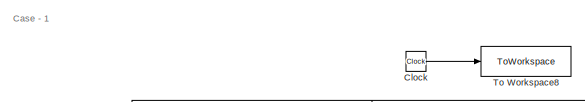
[diagram: root canvas - part 1/5, top left region]
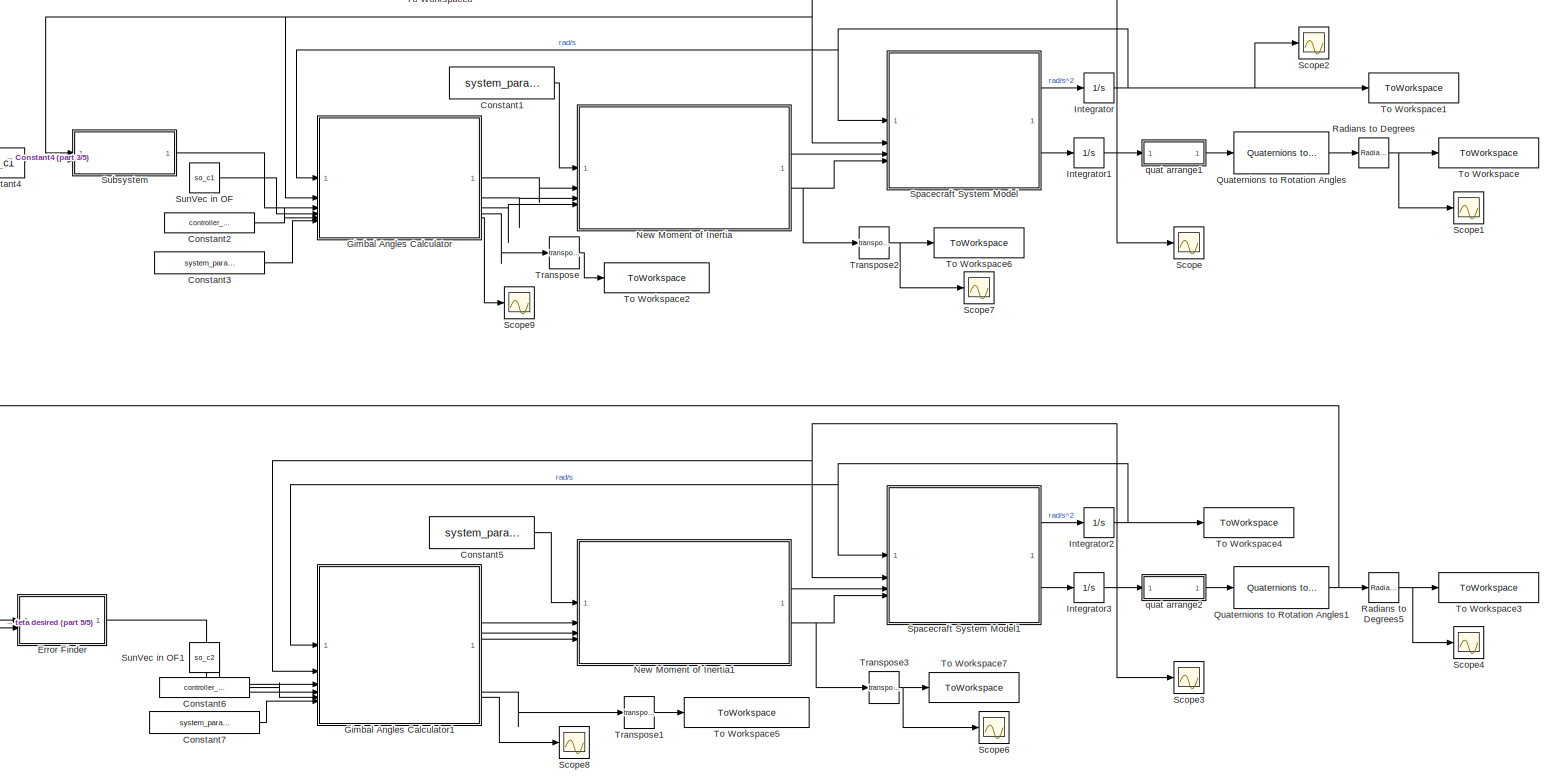
[diagram: root canvas - part 2/5, most of the canvas]
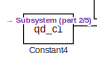
[diagram: root canvas - part 3/5, top left region]
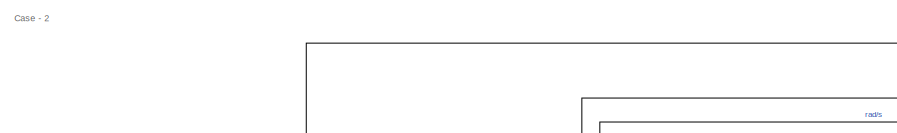
[diagram: root canvas - part 4/5, middle left region]
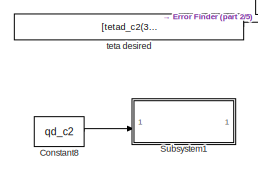
[diagram: root canvas - part 5/5, bottom left region]
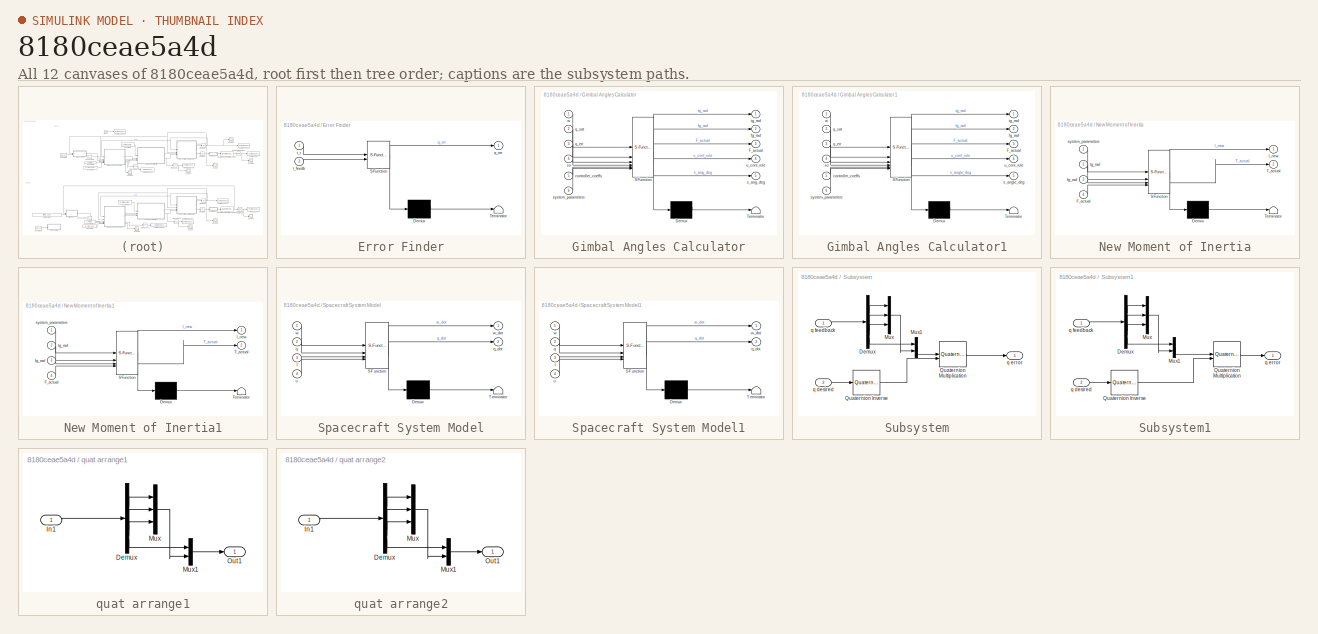
[diagram: thumbnail index - all 12 canvases of the model, root first then tree order]
MODEL slx_8180ceae5a4d
KIND model
CONFIG AbsTol = auto
CONFIG EnableMultiTasking = off
CONFIG FixedStep = dt
CONFIG MaxStep = auto
CONFIG MinStep = auto
CONFIG RelTol = 1e-3
CONFIG SampleTimeConstraint = Unconstrained
CONFIG SolverName = ode4
CONFIG StartTime = 0.0
CONFIG StopTime = tf_sim
BLOCK [Clock] Clock
BLOCK [Constant] Constant1
  Value = system_parameters
BLOCK [Constant] Constant2
  Value = controller_coeffs
BLOCK [Constant] Constant3
  Value = system_parameters
BLOCK [Constant] Constant4
  Value = qd_c1
BLOCK [Constant] Constant5
  Value = system_parameters
BLOCK [Constant] Constant6
  Value = controller_coeffs
BLOCK [Constant] Constant7
  Value = system_parameters
BLOCK [Constant] Constant8
  Commented = on
  Value = qd_c2
BLOCK [SubSystem] Error Finder
  ErrorFcn = Stateflow.Translate.translate
  PermitHierarchicalResolution = ExplicitOnly
  SFBlockType = MATLAB Function
  TreatAsAtomicUnit = on
BLOCK [Demux] Error Finder/ Demux 
  Outputs = 1
BLOCK [S-Function] Error Finder/ SFunction 
  EnableBusSupport = on
  FunctionName = sf_sfun
  PortCounts = [2 2]
  SFcnIsStateOwnerBlock = off
  SFunctionDeploymentMode = off
  Tag = Stateflow S-Function 6
BLOCK [Terminator] Error Finder/ Terminator 
BLOCK [Outport] Error Finder/q_err
BLOCK [Inport] Error Finder/t_feedb
  Port = 2
BLOCK [Inport] Error Finder/t_r
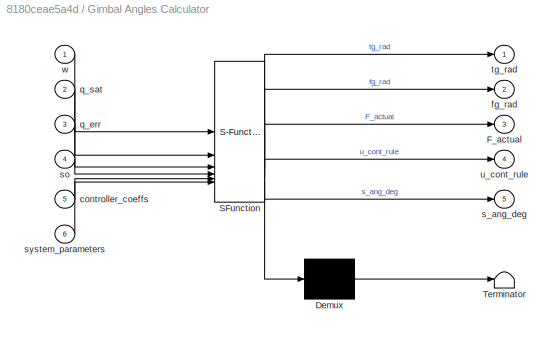
BLOCK [SubSystem] Gimbal Angles Calculator
  ErrorFcn = Stateflow.Translate.translate
  PermitHierarchicalResolution = ExplicitOnly
  SFBlockType = MATLAB Function
  TreatAsAtomicUnit = on
BLOCK [Demux] Gimbal Angles Calculator/ Demux 
  Outputs = 1
BLOCK [S-Function] Gimbal Angles Calculator/ SFunction 
  EnableBusSupport = on
  FunctionName = sf_sfun
  PortCounts = [6 6]
  SFcnIsStateOwnerBlock = off
  SFunctionDeploymentMode = off
  Tag = Stateflow S-Function 3
BLOCK [Terminator] Gimbal Angles Calculator/ Terminator 
BLOCK [Outport] Gimbal Angles Calculator/F_actual
  Port = 3
BLOCK [Inport] Gimbal Angles Calculator/controller_coeffs
  Port = 5
BLOCK [Outport] Gimbal Angles Calculator/fg_rad
  Port = 2
BLOCK [Inport] Gimbal Angles Calculator/q_err
  Port = 3
BLOCK [Inport] Gimbal Angles Calculator/q_sat
  Port = 2
BLOCK [Outport] Gimbal Angles Calculator/s_ang_deg
  Port = 5
BLOCK [Inport] Gimbal Angles Calculator/so
  Port = 4
BLOCK [Inport] Gimbal Angles Calculator/system_parameters
  Port = 6
BLOCK [Outport] Gimbal Angles Calculator/tg_rad
BLOCK [Outport] Gimbal Angles Calculator/u_cont_rule
  Port = 4
BLOCK [Inport] Gimbal Angles Calculator/w
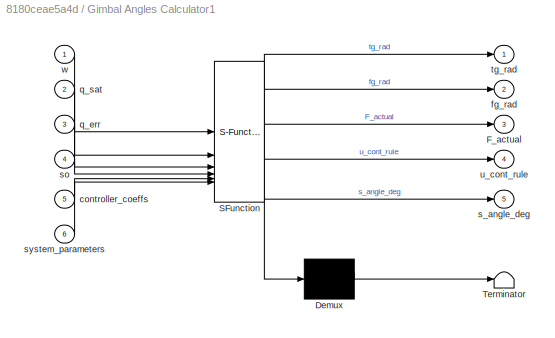
BLOCK [SubSystem] Gimbal Angles Calculator1
  ErrorFcn = Stateflow.Translate.translate
  PermitHierarchicalResolution = ExplicitOnly
  SFBlockType = MATLAB Function
  TreatAsAtomicUnit = on
BLOCK [Demux] Gimbal Angles Calculator1/ Demux 
  Outputs = 1
BLOCK [S-Function] Gimbal Angles Calculator1/ SFunction 
  EnableBusSupport = on
  FunctionName = sf_sfun
  PortCounts = [6 6]
  SFcnIsStateOwnerBlock = off
  SFunctionDeploymentMode = off
  Tag = Stateflow S-Function 1
BLOCK [Terminator] Gimbal Angles Calculator1/ Terminator 
BLOCK [Outport] Gimbal Angles Calculator1/F_actual
  Port = 3
BLOCK [Inport] Gimbal Angles Calculator1/controller_coeffs
  Port = 5
BLOCK [Outport] Gimbal Angles Calculator1/fg_rad
  Port = 2
BLOCK [Inport] Gimbal Angles Calculator1/q_err
  Port = 3
BLOCK [Inport] Gimbal Angles Calculator1/q_sat
  Port = 2
BLOCK [Outport] Gimbal Angles Calculator1/s_angle_deg
  Port = 5
BLOCK [Inport] Gimbal Angles Calculator1/so
  Port = 4
BLOCK [Inport] Gimbal Angles Calculator1/system_parameters
  Port = 6
BLOCK [Outport] Gimbal Angles Calculator1/tg_rad
BLOCK [Outport] Gimbal Angles Calculator1/u_cont_rule
  Port = 4
BLOCK [Inport] Gimbal Angles Calculator1/w
BLOCK [Integrator] Integrator
  InitialCondition = w0_c1
BLOCK [Integrator] Integrator1
  InitialCondition = [q0_c1(2:4)';q0_c1(1)]
BLOCK [Integrator] Integrator2
  InitialCondition = w0_c2
BLOCK [Integrator] Integrator3
  InitialCondition = [q0_c2(2:4)';q0_c2(1)]
BLOCK [SubSystem] New Moment of Inertia
  ErrorFcn = Stateflow.Translate.translate
  PermitHierarchicalResolution = ExplicitOnly
  SFBlockType = MATLAB Function
  TreatAsAtomicUnit = on
BLOCK [Demux] New Moment of Inertia/ Demux 
  Outputs = 1
BLOCK [S-Function] New Moment of Inertia/ SFunction 
  EnableBusSupport = on
  FunctionName = sf_sfun
  PortCounts = [4 3]
  SFcnIsStateOwnerBlock = off
  SFunctionDeploymentMode = off
  Tag = Stateflow S-Function 2
BLOCK [Terminator] New Moment of Inertia/ Terminator 
BLOCK [Inport] New Moment of Inertia/F_actual
  Port = 4
BLOCK [Outport] New Moment of Inertia/I_new
BLOCK [Outport] New Moment of Inertia/T_actual
  Port = 2
BLOCK [Inport] New Moment of Inertia/fg_rad
  Port = 3
BLOCK [Inport] New Moment of Inertia/system_parameters
BLOCK [Inport] New Moment of Inertia/tg_rad
  Port = 2
BLOCK [SubSystem] New Moment of Inertia1
  ErrorFcn = Stateflow.Translate.translate
  PermitHierarchicalResolution = ExplicitOnly
  SFBlockType = MATLAB Function
  TreatAsAtomicUnit = on
BLOCK [Demux] New Moment of Inertia1/ Demux 
  Outputs = 1
BLOCK [S-Function] New Moment of Inertia1/ SFunction 
  EnableBusSupport = on
  FunctionName = sf_sfun
  PortCounts = [4 3]
  SFcnIsStateOwnerBlock = off
  SFunctionDeploymentMode = off
  Tag = Stateflow S-Function 4
BLOCK [Terminator] New Moment of Inertia1/ Terminator 
BLOCK [Inport] New Moment of Inertia1/F_actual
  Port = 4
BLOCK [Outport] New Moment of Inertia1/I_new
BLOCK [Outport] New Moment of Inertia1/T_actual
  Port = 2
BLOCK [Inport] New Moment of Inertia1/fg_rad
  Port = 3
BLOCK [Inport] New Moment of Inertia1/system_parameters
BLOCK [Inport] New Moment of Inertia1/tg_rad
  Port = 2
BLOCK [Reference] Quaternions to Rotation Angles  REF=sharedtransform/Quaternions to Rotation Angles
  AttributesFormatString = Rotation Order: %<rotationOrder>
  LibrarySourceBlock = aerolibtransform2/Quaternions to Rotation Angles
  SourceBlock = sharedtransform/Quaternions to Rotation Angles
  SourceType = Quat2Ang
BLOCK [Reference] Quaternions to Rotation Angles1  REF=sharedtransform/Quaternions to Rotation Angles
  AttributesFormatString = Rotation Order: %<rotationOrder>
  LibrarySourceBlock = aerolibtransform2/Quaternions to Rotation Angles
  SourceBlock = sharedtransform/Quaternions to Rotation Angles
  SourceType = Quat2Ang
BLOCK [Reference] Radians to Degrees  REF=simulink_extras/Transformations/Radians
to Degrees
  SourceBlock = simulink_extras/Transformations/Radians\nto Degrees
  SourceType = RadiansToDegrees
BLOCK [Reference] Radians to Degrees5  REF=simulink_extras/Transformations/Radians
to Degrees
  SourceBlock = simulink_extras/Transformations/Radians\nto Degrees
  SourceType = RadiansToDegrees
BLOCK [Scope] Scope
  Floating = off
  NumInputPorts = 1
  ScopeSpecificationString = Simulink.scopes.TimeScopeBlockCfg('CurrentConfiguration', extmgr.ConfigurationSet(extmgr.Configuration('Core','General UI',true),extmgr.Configuration('Core','Source UI',true),extmgr.Configuration('Sources','WiredSimulink',true),extmgr.Configuration('Visuals','Time Domain',true,'SerializedDisplays',{struct('MinYLimReal','-0.29034','MaxYLimReal','1.14327','YLabelReal','','MinYLimMag','0.00000','MaxY...<+1524ch>
BLOCK [Scope] Scope1
  Floating = off
  NumInputPorts = 1
  ScopeSpecificationString = Simulink.scopes.TimeScopeBlockCfg('CurrentConfiguration', extmgr.ConfigurationSet(extmgr.Configuration('Core','General UI',true),extmgr.Configuration('Core','Source UI',true),extmgr.Configuration('Sources','WiredSimulink',true,'DataLoggingVariableName','ScopeData1'),extmgr.Configuration('Visuals','Time Domain',true,'SerializedDisplays',{struct('MinYLimReal','-22.60046','MaxYLimReal','34.36561','YL...<+1593ch>
BLOCK [Scope] Scope2
  Floating = off
  NumInputPorts = 1
  ScopeSpecificationString = Simulink.scopes.TimeScopeBlockCfg('CurrentConfiguration', extmgr.ConfigurationSet(extmgr.Configuration('Core','General UI',true),extmgr.Configuration('Core','Source UI',true),extmgr.Configuration('Sources','WiredSimulink',true,'DataLoggingVariableName','ScopeData2'),extmgr.Configuration('Visuals','Time Domain',true,'SerializedDisplays',{struct('MinYLimReal','-0.00043','MaxYLimReal','0.0006','YLabe...<+1525ch>
BLOCK [Scope] Scope3
  Floating = off
  NumInputPorts = 1
  ScopeSpecificationString = Simulink.scopes.TimeScopeBlockCfg('CurrentConfiguration', extmgr.ConfigurationSet(extmgr.Configuration('Core','General UI',true),extmgr.Configuration('Core','Source UI',true),extmgr.Configuration('Sources','WiredSimulink',true,'DataLoggingVariableName','ScopeData3'),extmgr.Configuration('Visuals','Time Domain',true,'SerializedDisplays',{struct('MinYLimReal','-0.20917','MaxYLimReal','1.11262','YLab...<+1563ch>
BLOCK [Scope] Scope4
  Floating = off
  NumInputPorts = 1
  ScopeSpecificationString = Simulink.scopes.TimeScopeBlockCfg('CurrentConfiguration', extmgr.ConfigurationSet(extmgr.Configuration('Core','General UI',true),extmgr.Configuration('Core','Source UI',true),extmgr.Configuration('Sources','WiredSimulink',true,'DataLoggingVariableName','ScopeData4'),extmgr.Configuration('Visuals','Time Domain',true,'SerializedDisplays',{struct('MinYLimReal','-10.17433','MaxYLimReal','34.46381','YL...<+1599ch>
BLOCK [Scope] Scope6
  Floating = off
  NumInputPorts = 1
  ScopeSpecificationString = Simulink.scopes.TimeScopeBlockCfg('CurrentConfiguration', extmgr.ConfigurationSet(extmgr.Configuration('Core','General UI',true),extmgr.Configuration('Core','Source UI',true),extmgr.Configuration('Sources','WiredSimulink',true,'DataLoggingVariableName','ScopeData6'),extmgr.Configuration('Visuals','Time Domain',true,'SerializedDisplays',{struct('MinYLimReal','-0.00103','MaxYLimReal','0.00064','YLab...<+1544ch>
BLOCK [Scope] Scope7
  Floating = off
  NumInputPorts = 1
  ScopeSpecificationString = Simulink.scopes.TimeScopeBlockCfg('CurrentConfiguration', extmgr.ConfigurationSet(extmgr.Configuration('Core','General UI',true),extmgr.Configuration('Core','Source UI',true),extmgr.Configuration('Sources','WiredSimulink',true,'DataLoggingVariableName','ScopeData7'),extmgr.Configuration('Visuals','Time Domain',true,'SerializedDisplays',{struct('MinYLimReal','-0.00301','MaxYLimReal','0.00179','YLab...<+1544ch>
BLOCK [Scope] Scope8
  Floating = off
  NumInputPorts = 1
  ScopeSpecificationString = Simulink.scopes.TimeScopeBlockCfg('CurrentConfiguration', extmgr.ConfigurationSet(extmgr.Configuration('Core','General UI',true),extmgr.Configuration('Core','Source UI',true),extmgr.Configuration('Sources','WiredSimulink',true,'DataLoggingVariableName','ScopeData8'),extmgr.Configuration('Visuals','Time Domain',true,'SerializedDisplays',{struct('MinYLimReal','44.56157','MaxYLimReal','48.94586','YLa...<+1564ch>
BLOCK [Scope] Scope9
  Floating = off
  NumInputPorts = 1
  ScopeSpecificationString = Simulink.scopes.TimeScopeBlockCfg('CurrentConfiguration', extmgr.ConfigurationSet(extmgr.Configuration('Core','General UI',true),extmgr.Configuration('Core','Source UI',true),extmgr.Configuration('Sources','WiredSimulink',true,'DataLoggingVariableName','ScopeData9'),extmgr.Configuration('Visuals','Time Domain',true,'SerializedDisplays',{struct('MinYLimReal','43.89785','MaxYLimReal','54.91933','YLa...<+1542ch>
BLOCK [SubSystem] Spacecraft System Model
  ErrorFcn = Stateflow.Translate.translate
  PermitHierarchicalResolution = ExplicitOnly
  SFBlockType = MATLAB Function
  TreatAsAtomicUnit = on
BLOCK [Demux] Spacecraft System Model/ Demux 
  Outputs = 1
BLOCK [S-Function] Spacecraft System Model/ SFunction 
  EnableBusSupport = on
  FunctionName = sf_sfun
  PortCounts = [4 3]
  SFcnIsStateOwnerBlock = off
  SFunctionDeploymentMode = off
  Tag = Stateflow S-Function 9
BLOCK [Terminator] Spacecraft System Model/ Terminator 
BLOCK [Inport] Spacecraft System Model/I
  Port = 3
BLOCK [Inport] Spacecraft System Model/q
  Port = 2
BLOCK [Outport] Spacecraft System Model/q_dot
  Port = 2
BLOCK [Inport] Spacecraft System Model/u
  Port = 4
BLOCK [Inport] Spacecraft System Model/w
BLOCK [Outport] Spacecraft System Model/w_dot
BLOCK [SubSystem] Spacecraft System Model1
  ErrorFcn = Stateflow.Translate.translate
  PermitHierarchicalResolution = ExplicitOnly
  SFBlockType = MATLAB Function
  TreatAsAtomicUnit = on
BLOCK [Demux] Spacecraft System Model1/ Demux 
  Outputs = 1
BLOCK [S-Function] Spacecraft System Model1/ SFunction 
  EnableBusSupport = on
  FunctionName = sf_sfun
  PortCounts = [4 3]
  SFcnIsStateOwnerBlock = off
  SFunctionDeploymentMode = off
  Tag = Stateflow S-Function 5
BLOCK [Terminator] Spacecraft System Model1/ Terminator 
BLOCK [Inport] Spacecraft System Model1/I
  Port = 3
BLOCK [Inport] Spacecraft System Model1/q
  Port = 2
BLOCK [Outport] Spacecraft System Model1/q_dot
  Port = 2
BLOCK [Inport] Spacecraft System Model1/u
  Port = 4
BLOCK [Inport] Spacecraft System Model1/w
BLOCK [Outport] Spacecraft System Model1/w_dot
BLOCK [SubSystem] Subsystem
BLOCK [Demux] Subsystem/Demux
BLOCK [Mux] Subsystem/Mux
  DisplayOption = bar
  Inputs = 3
BLOCK [Mux] Subsystem/Mux1
  DisplayOption = bar
  Inputs = 2
BLOCK [Reference] Subsystem/Quaternion Inverse  REF=aerolibutil/Quaternion
Inverse
  SourceBlock = aerolibutil/Quaternion\nInverse
  SourceType = Quaternion Inverse
BLOCK [Reference] Subsystem/Quaternion Multiplication  REF=aerolibutil/Quaternion
Multiplication
  SourceBlock = aerolibutil/Quaternion\nMultiplication
  SourceType = Quaternion Multiplication
BLOCK [Inport] Subsystem/q desired
  Port = 2
BLOCK [Outport] Subsystem/q error
BLOCK [Inport] Subsystem/q feedback
BLOCK [SubSystem] Subsystem1
  Commented = on
BLOCK [Demux] Subsystem1/Demux
BLOCK [Mux] Subsystem1/Mux
  DisplayOption = bar
  Inputs = 3
BLOCK [Mux] Subsystem1/Mux1
  DisplayOption = bar
  Inputs = 2
BLOCK [Reference] Subsystem1/Quaternion Inverse  REF=aerolibutil/Quaternion
Inverse
  SourceBlock = aerolibutil/Quaternion\nInverse
  SourceType = Quaternion Inverse
BLOCK [Reference] Subsystem1/Quaternion Multiplication  REF=aerolibutil/Quaternion
Multiplication
  SourceBlock = aerolibutil/Quaternion\nMultiplication
  SourceType = Quaternion Multiplication
BLOCK [Inport] Subsystem1/q desired
  Port = 2
BLOCK [Outport] Subsystem1/q error
BLOCK [Inport] Subsystem1/q feedback
BLOCK [Constant] SunVec in OF
  Value = so_c1
BLOCK [Constant] SunVec in OF1
  Value = so_c2
BLOCK [ToWorkspace] To Workspace
  FixptAsFi = on
  MaxDataPoints = inf
  SampleTime = -1
  Save2DSignal = 2-D array (concatenate along first dimension)
  VariableName = euler_angles_c1_deg
BLOCK [ToWorkspace] To Workspace1
  FixptAsFi = on
  MaxDataPoints = inf
  SampleTime = -1
  Save2DSignal = 2-D array (concatenate along first dimension)
  VariableName = ang_vel_c1_rads
BLOCK [ToWorkspace] To Workspace2
  FixptAsFi = on
  MaxDataPoints = inf
  SampleTime = -1
  Save2DSignal = 2-D array (concatenate along first dimension)
  VariableName = u_controller
BLOCK [ToWorkspace] To Workspace3
  FixptAsFi = on
  MaxDataPoints = inf
  SampleTime = -1
  Save2DSignal = 2-D array (concatenate along first dimension)
  VariableName = euler_angles_c2_deg
BLOCK [ToWorkspace] To Workspace4
  FixptAsFi = on
  MaxDataPoints = inf
  SampleTime = -1
  Save2DSignal = 2-D array (concatenate along first dimension)
  VariableName = ang_vel_c2_rads
BLOCK [ToWorkspace] To Workspace5
  FixptAsFi = on
  MaxDataPoints = inf
  SampleTime = -1
  Save2DSignal = 2-D array (concatenate along first dimension)
  VariableName = u_controller_c2
BLOCK [ToWorkspace] To Workspace6
  FixptAsFi = on
  MaxDataPoints = inf
  SampleTime = -1
  Save2DSignal = 2-D array (concatenate along first dimension)
  VariableName = actual_torque_c1
BLOCK [ToWorkspace] To Workspace7
  FixptAsFi = on
  MaxDataPoints = inf
  SampleTime = -1
  Save2DSignal = 2-D array (concatenate along first dimension)
  VariableName = actual_torque_c2
BLOCK [ToWorkspace] To Workspace8
  FixptAsFi = on
  MaxDataPoints = inf
  SampleTime = -1
  Save2DSignal = 2-D array (concatenate along first dimension)
  VariableName = t_sim
BLOCK [Math] Transpose
  Operator = transpose
BLOCK [Math] Transpose1
  Operator = transpose
BLOCK [Math] Transpose2
  Operator = transpose
BLOCK [Math] Transpose3
  Operator = transpose
BLOCK [SubSystem] quat arrange1
BLOCK [Demux] quat arrange1/Demux
BLOCK [Inport] quat arrange1/In1
BLOCK [Mux] quat arrange1/Mux
  DisplayOption = bar
  Inputs = 3
BLOCK [Mux] quat arrange1/Mux1
  DisplayOption = bar
  Inputs = 2
BLOCK [Outport] quat arrange1/Out1
BLOCK [SubSystem] quat arrange2
BLOCK [Demux] quat arrange2/Demux
BLOCK [Inport] quat arrange2/In1
BLOCK [Mux] quat arrange2/Mux
  DisplayOption = bar
  Inputs = 3
BLOCK [Mux] quat arrange2/Mux1
  DisplayOption = bar
  Inputs = 2
BLOCK [Outport] quat arrange2/Out1
BLOCK [Constant] teta desired
  Value = [tetad_c2(3) tetad_c2(2) tetad_c2(1)]'
ANNOTATION (root): Case - 1
ANNOTATION (root): Case - 2
LINE Clock:1 -> To Workspace8:1
LINE Constant1:1 -> New Moment of Inertia:1
LINE Constant2:1 -> Gimbal Angles Calculator:5
LINE Constant3:1 -> Gimbal Angles Calculator:6
LINE Constant4:1 -> Subsystem:2
LINE Constant5:1 -> New Moment of Inertia1:1
LINE Constant6:1 -> Gimbal Angles Calculator1:5
LINE Constant7:1 -> Gimbal Angles Calculator1:6
LINE Constant8:1 -> Subsystem1:2
LINE Error Finder:1 -> Gimbal Angles Calculator1:3
LINE Gimbal Angles Calculator1:1 -> New Moment of Inertia1:2
LINE Gimbal Angles Calculator1:2 -> New Moment of Inertia1:3
LINE Gimbal Angles Calculator1:3 -> New Moment of Inertia1:4
LINE Gimbal Angles Calculator1:4 -> Transpose1:1
LINE Gimbal Angles Calculator1:5 -> Scope8:1
LINE Gimbal Angles Calculator:1 -> New Moment of Inertia:2
LINE Gimbal Angles Calculator:2 -> New Moment of Inertia:3
LINE Gimbal Angles Calculator:3 -> New Moment of Inertia:4
LINE Gimbal Angles Calculator:4 -> Transpose:1
LINE Gimbal Angles Calculator:5 -> Scope9:1
NET Integrator1:1 -> Gimbal Angles Calculator:2, Scope:1, Spacecraft System Model:2, Subsystem:1, quat arrange1:1
NET Integrator2:1 -> Gimbal Angles Calculator1:1, Spacecraft System Model1:1, To Workspace4:1
NET Integrator3:1 -> Gimbal Angles Calculator1:2, Scope3:1, Spacecraft System Model1:2, quat arrange2:1
NET Integrator:1 -> Gimbal Angles Calculator:1, Scope2:1, Spacecraft System Model:1, To Workspace1:1
LINE New Moment of Inertia1:1 -> Spacecraft System Model1:3
NET New Moment of Inertia1:2 -> Spacecraft System Model1:4, Transpose3:1
LINE New Moment of Inertia:1 -> Spacecraft System Model:3
NET New Moment of Inertia:2 -> Spacecraft System Model:4, Transpose2:1
NET Quaternions to Rotation Angles1:1 -> Error Finder:1, Radians to Degrees5:1
LINE Quaternions to Rotation Angles:1 -> Radians to Degrees:1
NET Radians to Degrees5:1 -> Scope4:1, To Workspace3:1
NET Radians to Degrees:1 -> Scope1:1, To Workspace:1
LINE Spacecraft System Model1:1 -> Integrator2:1
LINE Spacecraft System Model1:2 -> Integrator3:1
LINE Spacecraft System Model:1 -> Integrator:1
LINE Spacecraft System Model:2 -> Integrator1:1
LINE Subsystem/Demux:1 -> Subsystem/Mux:1
LINE Subsystem/Demux:2 -> Subsystem/Mux:2
LINE Subsystem/Demux:3 -> Subsystem/Mux:3
LINE Subsystem/Demux:4 -> Subsystem/Mux1:1
LINE Subsystem/Mux1:1 -> Subsystem/Quaternion Multiplication:1
LINE Subsystem/Mux:1 -> Subsystem/Mux1:2
LINE Subsystem/Quaternion Inverse:1 -> Subsystem/Quaternion Multiplication:2
LINE Subsystem/Quaternion Multiplication:1 -> Subsystem/q error:1
LINE Subsystem/q desired:1 -> Subsystem/Quaternion Inverse:1
LINE Subsystem/q feedback:1 -> Subsystem/Demux:1
LINE Subsystem1/Demux:1 -> Subsystem1/Mux:1
LINE Subsystem1/Demux:2 -> Subsystem1/Mux:2
LINE Subsystem1/Demux:3 -> Subsystem1/Mux:3
LINE Subsystem1/Demux:4 -> Subsystem1/Mux1:1
LINE Subsystem1/Mux1:1 -> Subsystem1/Quaternion Multiplication:1
LINE Subsystem1/Mux:1 -> Subsystem1/Mux1:2
LINE Subsystem1/Quaternion Inverse:1 -> Subsystem1/Quaternion Multiplication:2
LINE Subsystem1/Quaternion Multiplication:1 -> Subsystem1/q error:1
LINE Subsystem1/q desired:1 -> Subsystem1/Quaternion Inverse:1
LINE Subsystem1/q feedback:1 -> Subsystem1/Demux:1
LINE Subsystem:1 -> Gimbal Angles Calculator:3
LINE SunVec in OF1:1 -> Gimbal Angles Calculator1:4
LINE SunVec in OF:1 -> Gimbal Angles Calculator:4
LINE Transpose1:1 -> To Workspace5:1
NET Transpose2:1 -> Scope7:1, To Workspace6:1
NET Transpose3:1 -> Scope6:1, To Workspace7:1
LINE Transpose:1 -> To Workspace2:1
LINE quat arrange1/Demux:1 -> quat arrange1/Mux:1
LINE quat arrange1/Demux:2 -> quat arrange1/Mux:2
LINE quat arrange1/Demux:3 -> quat arrange1/Mux:3
LINE quat arrange1/Demux:4 -> quat arrange1/Mux1:1
LINE quat arrange1/In1:1 -> quat arrange1/Demux:1
LINE quat arrange1/Mux1:1 -> quat arrange1/Out1:1
LINE quat arrange1/Mux:1 -> quat arrange1/Mux1:2
LINE quat arrange1:1 -> Quaternions to Rotation Angles:1
LINE quat arrange2/Demux:1 -> quat arrange2/Mux:1
LINE quat arrange2/Demux:2 -> quat arrange2/Mux:2
LINE quat arrange2/Demux:3 -> quat arrange2/Mux:3
LINE quat arrange2/Demux:4 -> quat arrange2/Mux1:1
LINE quat arrange2/In1:1 -> quat arrange2/Demux:1
LINE quat arrange2/Mux1:1 -> quat arrange2/Out1:1
LINE quat arrange2/Mux:1 -> quat arrange2/Mux1:2
LINE quat arrange2:1 -> Quaternions to Rotation Angles1:1
LINE teta desired:1 -> Error Finder:2
note: NET lines group one-source signal fan-out (src -> all destinations, sorted); 1:1 wires keep LINE
CHART Gimbal Angles Calculator1 states=1 transitions=1
  STATE_LABEL 'eML_blk_kernel()'
  STATE_LABEL 'SCRIPT:\nfunction [tg_rad,fg_rad,F_actual,u_cont_rule,s_angle_deg] = fcn(w,q_sat,q_err,so,controller_coeffs, system_parameters)\n\n%% Arrange the quaternion\n% q_sat_err = [q_err(2:4); q_err(1)];\nq_sat_err = q_err;\n\n%% Obtain the system parameters\n\na     = system_parameters(1);  % sail side length [meter]\nl     = system_parameters(2);  % gimballed rod length [meter]\nb     = system_parameters(3);  % Gi...<+1289ch>'
CHART New Moment of Inertia states=1 transitions=1
  STATE_LABEL 'eML_blk_kernel()'
  STATE_LABEL 'SCRIPT:\nfunction [I_new,T_actual] = fcn(system_parameters, tg_rad, fg_rad, F_actual)\n\n%% Obtain the system parameters\na     = system_parameters(1);  % sail side length [meter]\nl     = system_parameters(2);  % gimballed rod length [meter]\nb     = system_parameters(3);  % Gimball Mechanism Height [meter]\nAs    = system_parameters(4);  % Sail Area [m^2]\nsigma = system_parameters(5);  % Thrust Coeffic...<+2702ch>'
CHART Gimbal Angles Calculator states=1 transitions=1
  STATE_LABEL 'eML_blk_kernel()'
  STATE_LABEL 'SCRIPT:\nfunction [tg_rad,fg_rad,F_actual,u_cont_rule,s_ang_deg] = fcn(w,q_sat,q_err,so,controller_coeffs, system_parameters)\n\n%% Arrange the quaternion\nq = [q_err(2:4); q_err(1)];\n\n%% Obtain the system parameters\n\na     = system_parameters(1);  % sail side length [meter]\nl     = system_parameters(2);  % gimballed rod length [meter]\nb     = system_parameters(3);  % Gimball Mechanism Height [meter]\n...<+1248ch>'
CHART New Moment of Inertia1 states=1 transitions=1
  STATE_LABEL 'eML_blk_kernel()'
  STATE_LABEL 'SCRIPT:\nfunction [I_new,T_actual] = fcn(system_parameters, tg_rad, fg_rad, F_actual)\n\n%% Obtain the system parameters\na     = system_parameters(1);  % sail side length [meter]\nl     = system_parameters(2);  % gimballed rod length [meter]\nb     = system_parameters(3);  % Gimball Mechanism Height [meter]\nAs    = system_parameters(4);  % Sail Area [m^2]\nsigma = system_parameters(5);  % Thrust Coeffic...<+2702ch>'
CHART Spacecraft System Model1 states=1 transitions=1
  STATE_LABEL 'eML_blk_kernel()'
  STATE_LABEL 'SCRIPT:\nfunction [w_dot,q_dot] = fcn(w,q,I,u)\n\n% Spacecraft Dynamic\n\nw1 = w(1);\nw2 = w(2);\nw3 = w(3);\n\nW = [ 0,  w3, -w2, w1;\n    -w3,   0,  w1, w2;\n     w2, -w1,   0, w3;\n    -w1, -w2, -w3,  0 ];\n\n% output\nw_dot = inv(I)*(-cross(w,I*w)+u);\n\nq_dot = 0.5*W*q;\n\nend\n'
CHART Error Finder states=1 transitions=1
  STATE_LABEL 'eML_blk_kernel()'
  STATE_LABEL "SCRIPT:\nfunction q_err = fcn(t_r,t_feedb)\n    \nt_err = t_r - t_feedb;\n\nQ = ypr2dcm321(t_err(1),t_err(2),t_err(3),'rad');\n\nq_err = q_from_dcm(Q);\n\nend\n"
CHART Spacecraft System Model states=1 transitions=1
  STATE_LABEL 'eML_blk_kernel()'
  STATE_LABEL 'SCRIPT:\nfunction [w_dot,q_dot] = fcn(w,q,I,u)\n\n% Spacecraft Dynamic\n\nw1 = w(1);\nw2 = w(2);\nw3 = w(3);\n\nW = [ 0,  w3, -w2, w1;\n    -w3,   0,  w1, w2;\n     w2, -w1,   0, w3;\n    -w1, -w2, -w3,  0 ];\n\n% output\nw_dot = inv(I)*(-cross(w,I*w)+u);\n\nq_dot = 0.5*W*q;\n\nend\n'
CHART  states=0 transitions=0
CHART  states=0 transitions=0
CHART  states=0 transitions=0
CHART  states=0 transitions=0
CHART  states=0 transitions=0
CHART  states=0 transitions=0
CHART  states=0 transitions=0
